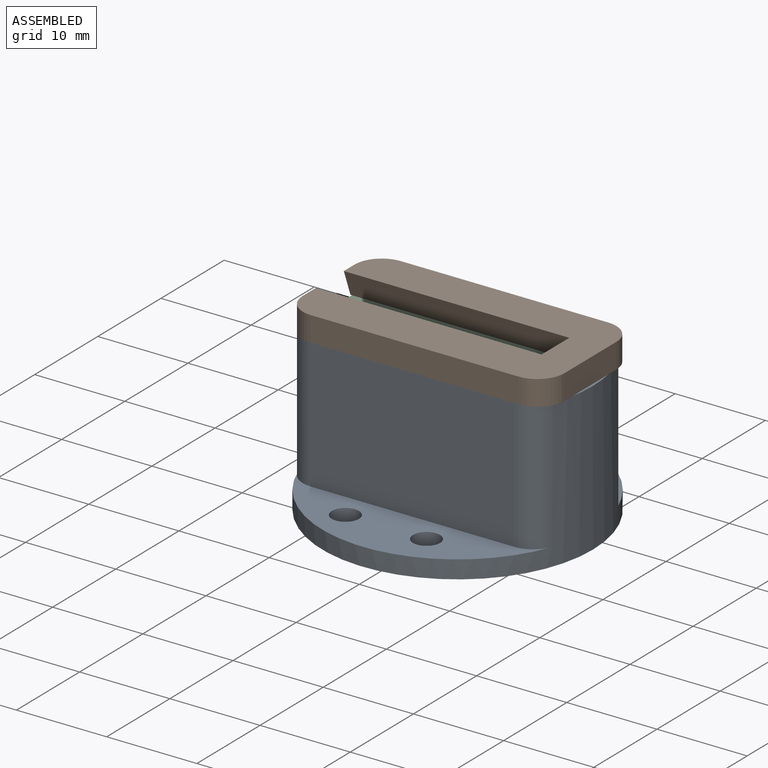
[diagram: assembled view]
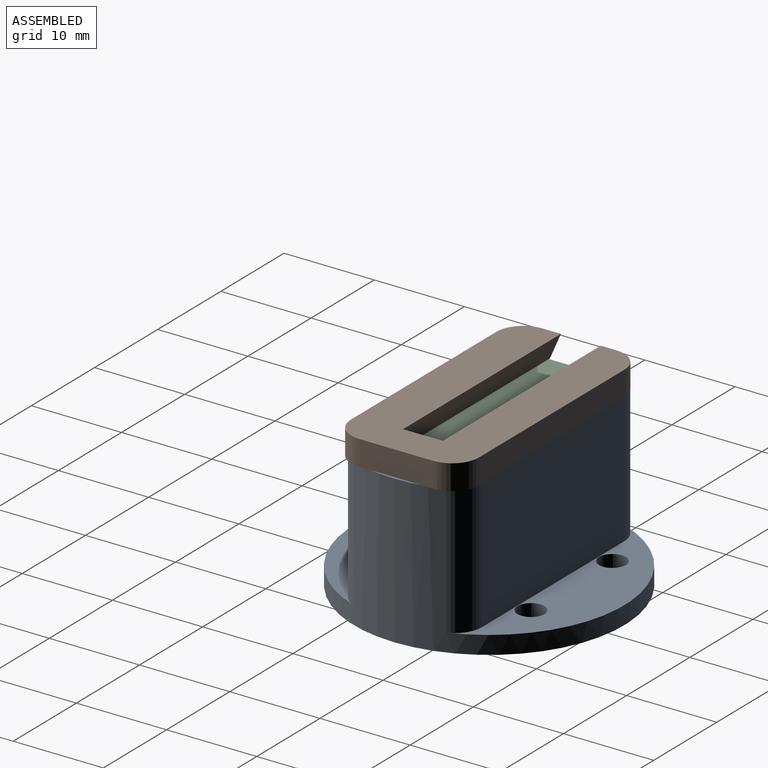
[diagram: assembled view, second angle]
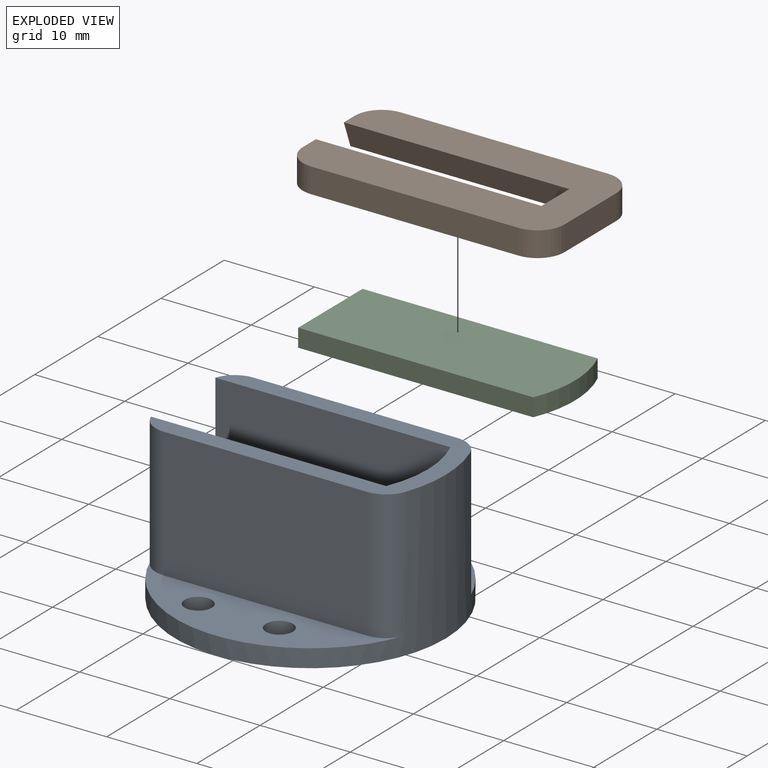
[diagram: exploded view]
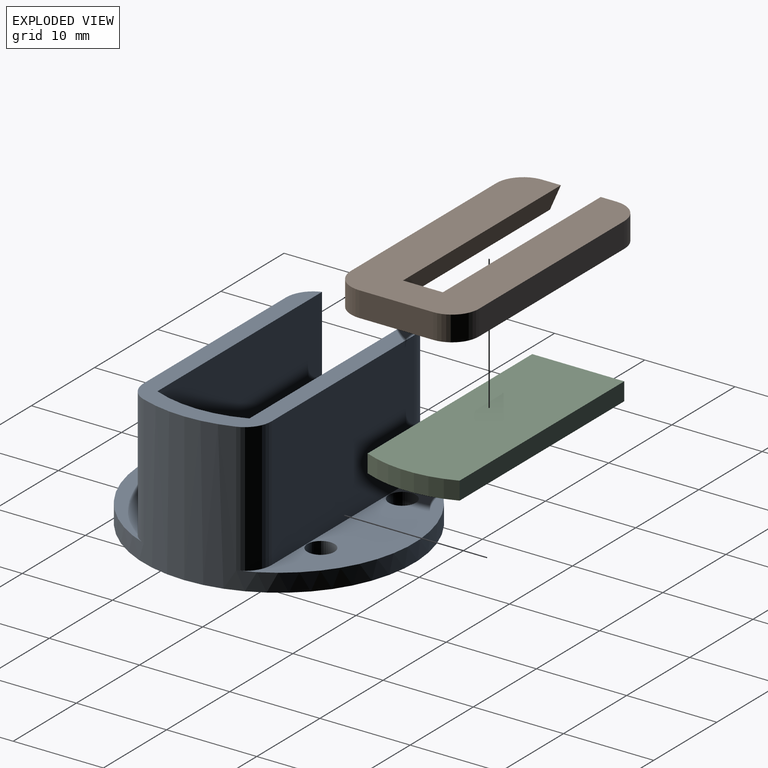
[diagram: exploded view, second angle]
ASSEMBLY  parts=3 mates=2
PART A: 20 faces, bbox 30x30x16.4 mm
  f0: plane 22.56x14.4mm, normal (0,-1,0), area 324.8mm2, adj f6,f7,f8,f19
  f1: plane 22.56x14.4mm, normal (0,1,0), area 324.8mm2, adj f6,f9,f10,f12
  f2: cylinder r=15mm len=30mm, axis (0,0,-1), area 339.5mm2, adj f3,f6,f7,f8,f9,f10,f11,f12
  f3: plane 26.06x14.4mm, normal (0,-1,0), area 375.3mm2, adj f2,f4,f6,f11
  f4: cylinder r=13mm len=14.4mm, axis (0,0,-1), area 150.9mm2, adj f3,f5,f6,f11
  f5: plane 26.06x14.4mm, normal (0,1,0), area 375.3mm2, adj f4,f6,f7,f11
  f6: plane 29.11x14.2mm, normal (0,0,1), area 127.6mm2, adj f0,f1,f2,f3,f4,f5,f7,f8
  f7: cylinder r=3mm len=14.4mm, axis (0,0,1), area 53.2mm2, adj f0,f2,f5,f6,f19
  f8: cylinder r=3mm len=14.4mm, axis (0,0,-1), area 52.8mm2, adj f0,f2,f6,f19
  f9: cylinder r=3mm len=14.4mm, axis (0,0,-1), area 52.8mm2, adj f1,f2,f6,f12
  f10: cylinder r=3mm len=14.4mm, axis (0,0,-1), area 52.8mm2, adj f1,f2,f6,f12
  f11: plane 28x10.2mm, normal (0,0,1), area 215.5mm2, adj f2,f3,f4,f5,f14
  f12: plane 28.19x9.88mm, normal (0,0,1), area 135.9mm2, adj f1,f2,f9,f10,f15,f16
  f13: cylinder r=1.5mm len=3mm, axis (0,0,1), area 18.8mm2, adj f18,f19
  f14: cylinder r=4.5mm len=9mm, axis (0,0,1), area 56.5mm2, adj f11,f18
  f15: cylinder r=1.5mm len=3mm, axis (0,0,1), area 18.8mm2, adj f12,f18
  f16: cylinder r=1.5mm len=3mm, axis (0,0,1), area 18.8mm2, adj f12,f18
  f17: cylinder r=1.5mm len=3mm, axis (0,0,1), area 18.8mm2, adj f18,f19
  f18: plane 30x30mm, normal (0,0,-1), area 615mm2, adj f2,f13,f14,f15,f16,f17
  f19: plane 28.19x9.88mm, normal (0,0,1), area 135.9mm2, adj f0,f2,f7,f8,f13,f17
PART B: 14 faces, bbox 29x14.2x2.8 mm
  f0: plane 2.78x1.72mm, normal (-1,0,0), area 3.3mm2, adj f1,f2,f7,f11
  f1: plane 29x14.2mm, normal (0,0,1), area 293.7mm2, adj f0,f3,f4,f5,f6,f7,f8,f9
  f2: plane 29x14.2mm, normal (0,0,-1), area 237.1mm2, adj f0,f3,f4,f5,f6,f7,f8,f9
  f3: plane 23x2.78mm, normal (0,-1,0), area 63.9mm2, adj f1,f2,f10,f12
  f4: plane 23x2.78mm, normal (0,1,0), area 63.9mm2, adj f1,f2,f11,f13
  f5: plane 8.2x2.78mm, normal (1,0,0), area 22.8mm2, adj f1,f2,f12,f13
  f6: plane 2.78x2.06mm, normal (-1,0,0), area 4mm2, adj f1,f2,f8,f10
  f7: plane 25x2.78mm, normal (0,-0.94,-0.35), area 74.2mm2, adj f0,f1,f2,f9
  f8: plane 25x2.78mm, normal (0,0.92,-0.4), area 75.8mm2, adj f1,f2,f6,f9
  f9: plane 6.68x2.78mm, normal (-1,0,0), area 15.4mm2, adj f1,f2,f7,f8
  f10: cylinder r=3mm len=3mm, axis (0,0,1), area 13.1mm2, adj f1,f2,f3,f6
  f11: cylinder r=3mm len=3mm, axis (0,0,-1), area 13.1mm2, adj f0,f1,f2,f4
  f12: cylinder r=3mm len=3mm, axis (0,0,-1), area 13.1mm2, adj f1,f2,f3,f5
  f13: cylinder r=3mm len=3mm, axis (0,0,1), area 13.1mm2, adj f1,f2,f4,f5
PART C: 6 faces, bbox 27.1x10.2x2 mm
  f0: plane 10.2x2mm, normal (-1,0,0), area 20.4mm2, adj f1,f3,f4,f5
  f1: plane 26.06x2mm, normal (0,-1,0), area 52.1mm2, adj f0,f2,f4,f5
  f2: cylinder r=13mm len=10.2mm, axis (0,0,1), area 21mm2, adj f1,f3,f4,f5
  f3: plane 26.06x2mm, normal (0,1,0), area 52.1mm2, adj f0,f2,f4,f5
  f4: plane 27.11x10.2mm, normal (0,0,-1), area 273mm2, adj f0,f1,f2,f3
  f5: plane 27.11x10.2mm, normal (0,0,1), area 273mm2, adj f0,f1,f2,f3
PLACE A t=(-41.03,57.03,5.45)mm
PLACE B t=(-41.2,57.03,5.45)mm
PLACE C t=(-41.03,57.03,5.45)mm
MATE fastened B.f2 <-> A.f6  axis (0,0,1) through (-52.31,49.93,19.85)mm
MATE fastened C.f5 <-> A.f6  axis (0,0,1) through (-55.14,62.13,19.85)mm
